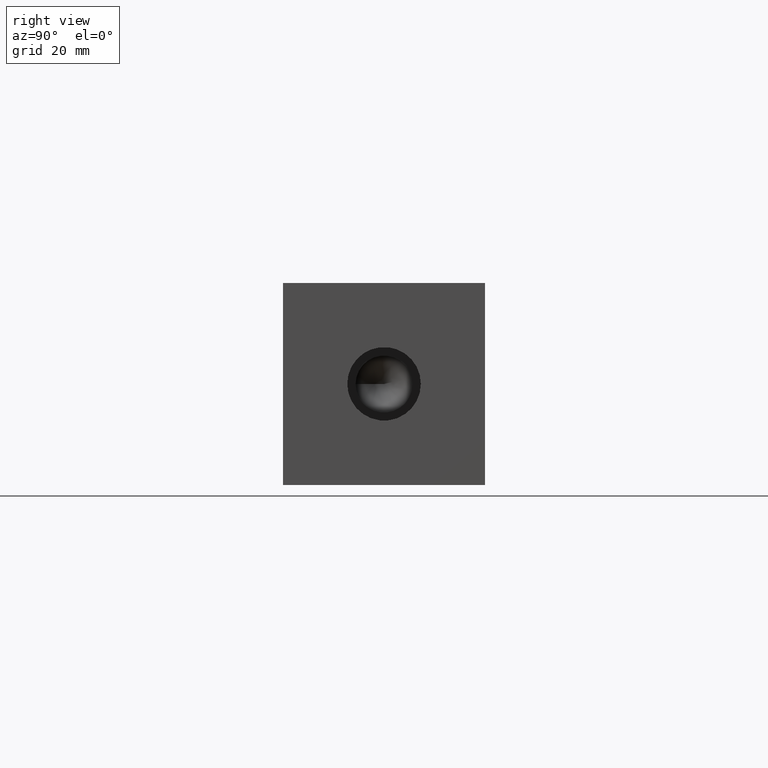
[diagram: clean part render]
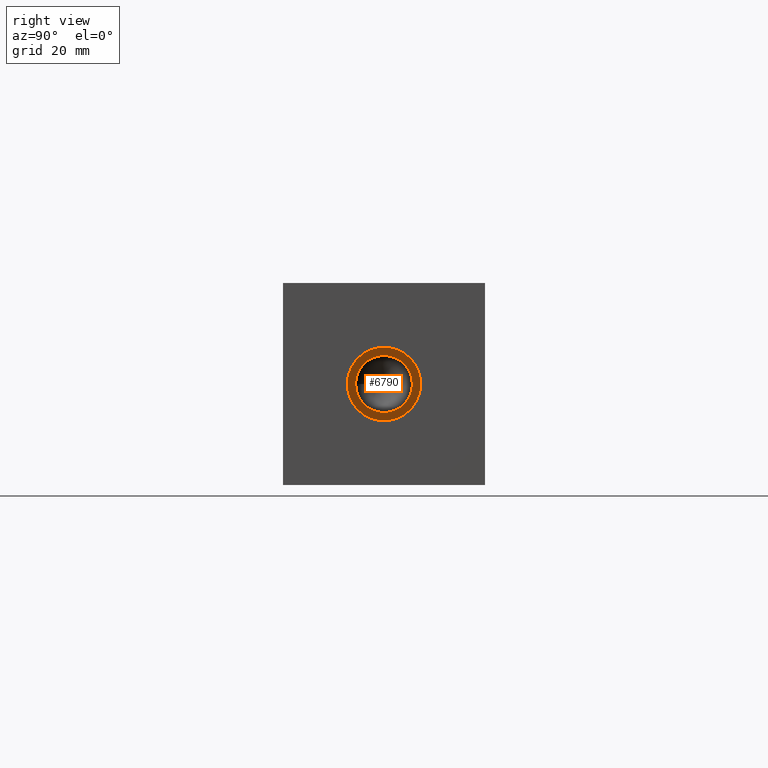
[diagram: same view with one face highlighted and labeled with its STEP entity id]
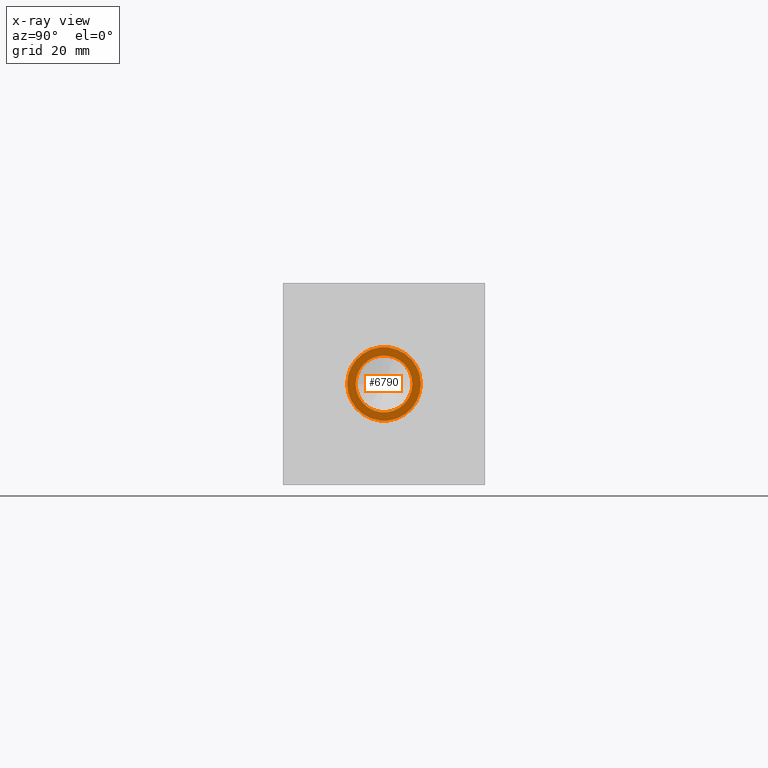
[diagram: x-ray of the same camera — body ghosted, the highlighted face saturated]
A machine part, right view. The second image highlights one B-rep face of the part: STEP entity #6790.
The next image is the same camera in x-ray: the body ghosted, the highlighted face saturated — about 0% of this face is hidden behind the body in this view.
In plain terms, the highlighted planar face has unit normal (1, 0, 0).
Its self-contained STEP definition (entity closure, byte-faithful):
#80=CIRCLE('',#7085,6.9342);
#81=CIRCLE('',#7086,6.9342);
#82=CIRCLE('',#7087,5.3594);
#128=FACE_BOUND('',#1062,.T.);
#344=PLANE('',#7084);
#682=FACE_OUTER_BOUND('',#1061,.T.);
#1061=EDGE_LOOP('',(#5986,#5987));
#1062=EDGE_LOOP('',(#5988));
#3237=VERTEX_POINT('',#11588);
#3238=VERTEX_POINT('',#11589);
#3239=VERTEX_POINT('',#11592);
#4162=EDGE_CURVE('',#3237,#3238,#80,.T.);
#4163=EDGE_CURVE('',#3238,#3237,#81,.T.);
#4164=EDGE_CURVE('',#3239,#3239,#82,.T.);
#5986=ORIENTED_EDGE('',*,*,#4162,.T.);
#5987=ORIENTED_EDGE('',*,*,#4163,.T.);
#5988=ORIENTED_EDGE('',*,*,#4164,.F.);
#6790=ADVANCED_FACE('',(#682,#128),#344,.T.);
#7084=AXIS2_PLACEMENT_3D('',#11587,#8298,#8299);
#7085=AXIS2_PLACEMENT_3D('',#11590,#8300,#8301);
#7086=AXIS2_PLACEMENT_3D('',#11591,#8302,#8303);
#7087=AXIS2_PLACEMENT_3D('',#11593,#8304,#8305);
#8298=DIRECTION('center_axis',(1.,0.,0.));
#8299=DIRECTION('ref_axis',(0.,1.,0.));
#8300=DIRECTION('center_axis',(1.,0.,0.));
#8301=DIRECTION('ref_axis',(0.,1.,0.));
#8302=DIRECTION('center_axis',(1.,0.,0.));
#8303=DIRECTION('ref_axis',(0.,1.,0.));
#8304=DIRECTION('center_axis',(1.,0.,0.));
#8305=DIRECTION('ref_axis',(0.,1.,0.));
#11587=CARTESIAN_POINT('Origin',(115.5954,19.05,19.05));
#11588=CARTESIAN_POINT('',(115.5954,25.9842,19.05));
#11589=CARTESIAN_POINT('',(115.5954,12.1158,19.05));
#11590=CARTESIAN_POINT('Origin',(115.5954,19.05,19.05));
#11591=CARTESIAN_POINT('Origin',(115.5954,19.05,19.05));
#11592=CARTESIAN_POINT('',(115.5954,13.6906,19.05));
#11593=CARTESIAN_POINT('Origin',(115.5954,19.05,19.05));